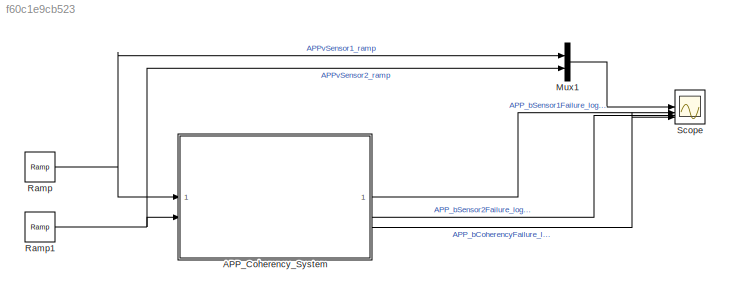
MODEL slx_f60c1e9cb523
KIND model
CONFIG AbsTol = auto
CONFIG EnableMultiTasking = off
CONFIG FixedStep = auto
CONFIG MaxStep = 1e-3
CONFIG MinStep = auto
CONFIG RelTol = 1e-3
CONFIG SampleTimeConstraint = Unconstrained
CONFIG SolverName = VariableStepAuto
CONFIG StartTime = 0.0
CONFIG StopTime = 1
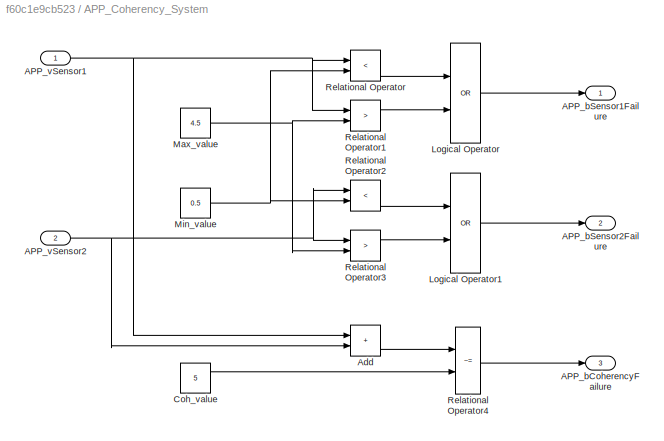
BLOCK [SubSystem] APP_Coherency_System
BLOCK [Outport] APP_Coherency_System/APP_bCoherencyFailure
  Port = 3
BLOCK [Outport] APP_Coherency_System/APP_bSensor1Failure
BLOCK [Outport] APP_Coherency_System/APP_bSensor2Failure
  Port = 2
BLOCK [Inport] APP_Coherency_System/APP_vSensor1
BLOCK [Inport] APP_Coherency_System/APP_vSensor2
  NameLocation = top
  Port = 2
BLOCK [Sum] APP_Coherency_System/Add
  IconShape = rectangular
BLOCK [Constant] APP_Coherency_System/Coh_value
  Value = 5
BLOCK [Logic] APP_Coherency_System/Logical Operator
  AllPortsSameDT = off
  Operator = OR
  OutDataTypeStr = boolean
BLOCK [Logic] APP_Coherency_System/Logical Operator1
  AllPortsSameDT = off
  Operator = OR
  OutDataTypeStr = boolean
BLOCK [Constant] APP_Coherency_System/Max_value
  Value = 4.5
BLOCK [Constant] APP_Coherency_System/Min_value
  Value = 0.5
BLOCK [RelationalOperator] APP_Coherency_System/Relational Operator
  InputSameDT = off
  Operator = <
  OutDataTypeStr = boolean
  RndMeth = Simplest
BLOCK [RelationalOperator] APP_Coherency_System/Relational Operator1
  InputSameDT = off
  Operator = >
  OutDataTypeStr = boolean
  RndMeth = Simplest
BLOCK [RelationalOperator] APP_Coherency_System/Relational Operator2
  InputSameDT = off
  Operator = <
  OutDataTypeStr = boolean
  RndMeth = Simplest
BLOCK [RelationalOperator] APP_Coherency_System/Relational Operator3
  InputSameDT = off
  Operator = >
  OutDataTypeStr = boolean
  RndMeth = Simplest
BLOCK [RelationalOperator] APP_Coherency_System/Relational Operator4
  InputSameDT = off
  Operator = ~=
  OutDataTypeStr = boolean
  RndMeth = Simplest
BLOCK [Mux] Mux1
  DisplayOption = bar
  Inputs = 2
BLOCK [Reference] Ramp  REF=simulink/Sources/Ramp
  SourceBlock = simulink/Sources/Ramp
  SourceType = Ramp
BLOCK [Reference] Ramp1  REF=simulink/Sources/Ramp
  SourceBlock = simulink/Sources/Ramp
  SourceType = Ramp
BLOCK [Scope] Scope
  Floating = off
  NumInputPorts = 4
  ScopeSpecificationString = Simulink.scopes.TimeScopeBlockCfg('CurrentConfiguration', extmgr.ConfigurationSet(extmgr.Configuration('Core','General UI',true,'FigureColor',[1 1 1]),extmgr.Configuration('Core','Source UI',true),extmgr.Configuration('Sources','WiredSimulink',true),extmgr.Configuration('Visuals','Time Domain',true,'SerializedDisplays',{struct('MinYLimReal','-0.5625','MaxYLimReal','5.0625','YLabelReal','','MinYLim...<+4134ch>
NET APP_Coherency_System/APP_vSensor1:1 -> APP_Coherency_System/Add:1, APP_Coherency_System/Relational Operator1:1, APP_Coherency_System/Relational Operator:1
NET APP_Coherency_System/APP_vSensor2:1 -> APP_Coherency_System/Add:2, APP_Coherency_System/Relational Operator2:1, APP_Coherency_System/Relational Operator3:1
LINE APP_Coherency_System/Add:1 -> APP_Coherency_System/Relational Operator4:1
LINE APP_Coherency_System/Coh_value:1 -> APP_Coherency_System/Relational Operator4:2
LINE APP_Coherency_System/Logical Operator1:1 -> APP_Coherency_System/APP_bSensor2Failure:1
LINE APP_Coherency_System/Logical Operator:1 -> APP_Coherency_System/APP_bSensor1Failure:1
NET APP_Coherency_System/Max_value:1 -> APP_Coherency_System/Relational Operator1:2, APP_Coherency_System/Relational Operator3:2
NET APP_Coherency_System/Min_value:1 -> APP_Coherency_System/Relational Operator2:2, APP_Coherency_System/Relational Operator:2
LINE APP_Coherency_System/Relational Operator1:1 -> APP_Coherency_System/Logical Operator:2
LINE APP_Coherency_System/Relational Operator2:1 -> APP_Coherency_System/Logical Operator1:1
LINE APP_Coherency_System/Relational Operator3:1 -> APP_Coherency_System/Logical Operator1:2
LINE APP_Coherency_System/Relational Operator4:1 -> APP_Coherency_System/APP_bCoherencyFailure:1
LINE APP_Coherency_System/Relational Operator:1 -> APP_Coherency_System/Logical Operator:1
LINE APP_Coherency_System:1 -> Scope:2
LINE APP_Coherency_System:2 -> Scope:3
LINE APP_Coherency_System:3 -> Scope:4
LINE Mux1:1 -> Scope:1
NET Ramp1:1 -> APP_Coherency_System:2, Mux1:2
NET Ramp:1 -> APP_Coherency_System:1, Mux1:1
note: NET lines group one-source signal fan-out (src -> all destinations, sorted); 1:1 wires keep LINE
